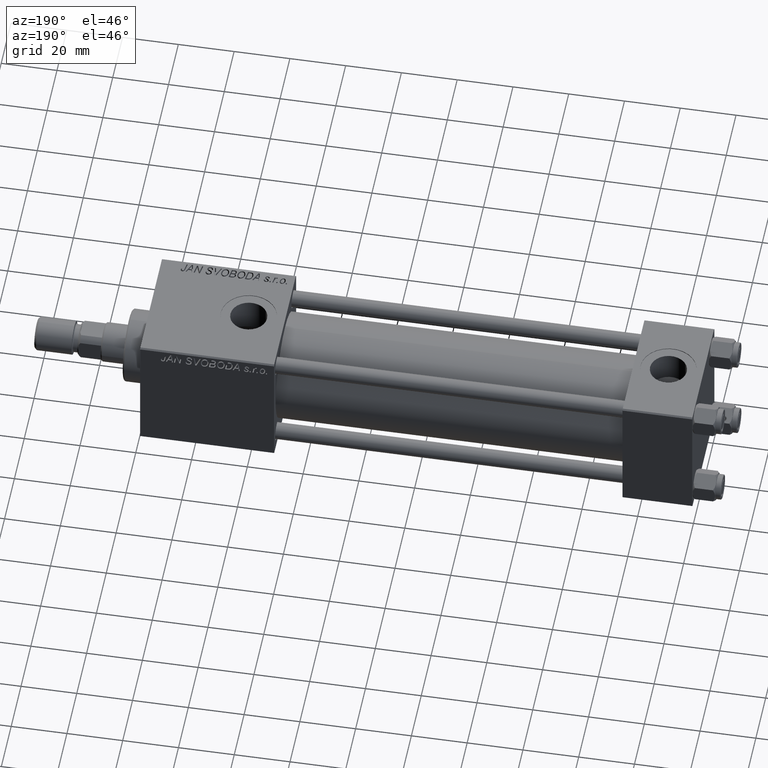
[diagram: clean part render]
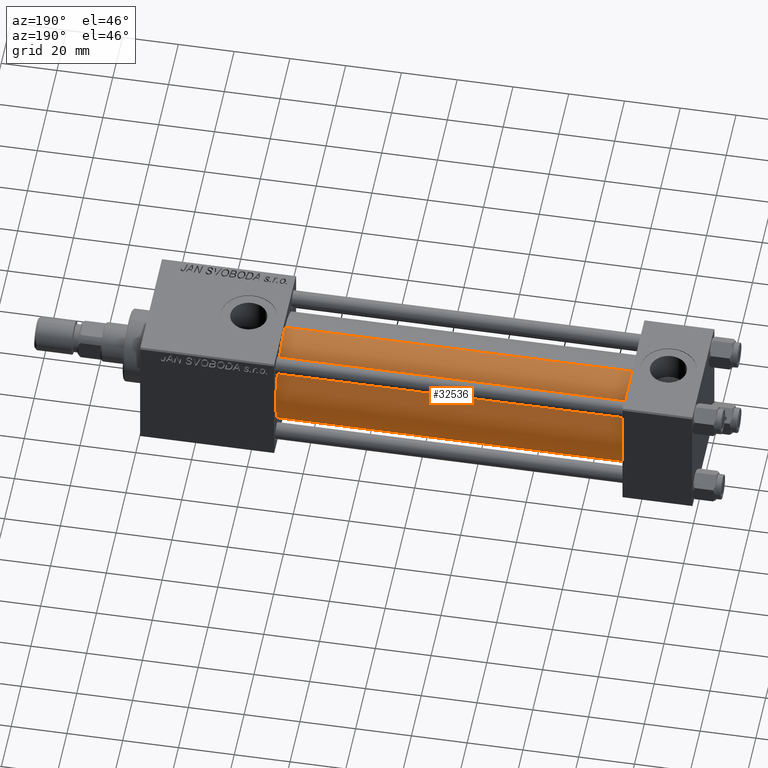
[diagram: same view with one face highlighted and labeled with its STEP entity id]
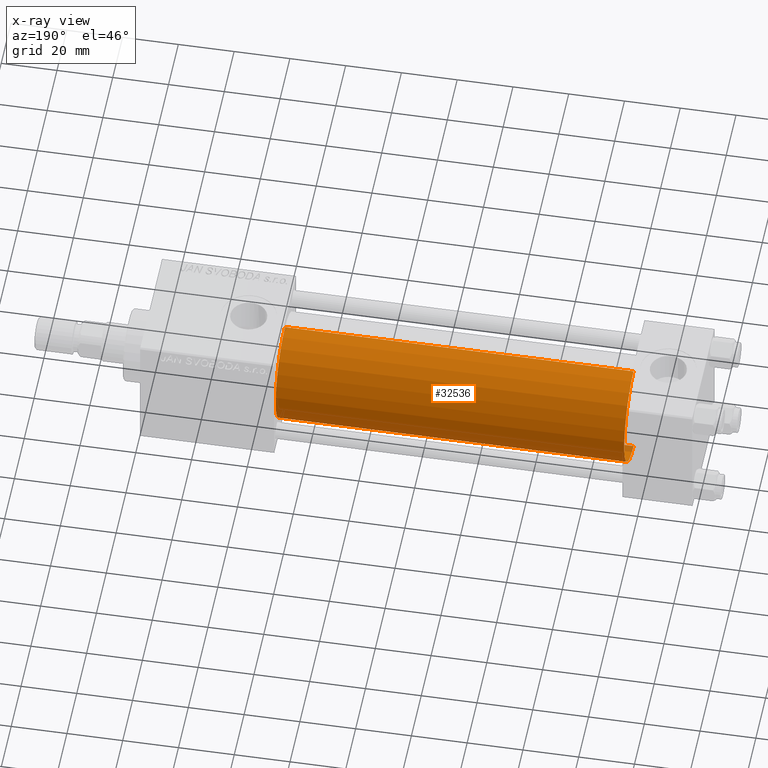
[diagram: x-ray of the same camera — body ghosted, the highlighted face saturated]
A machine part, auxiliary view. The second image highlights one B-rep face of the part: STEP entity #32536.
The next image is the same camera in x-ray: the body ghosted, the highlighted face saturated — about 0% of this face is hidden behind the body in this view.
In plain terms, the highlighted cylindrical surface (partial cylindrical patch) has radius 19 mm, axis along (-1, -0, -0).
Its self-contained STEP definition (entity closure, byte-faithful):
#902 = VECTOR ( 'NONE', #4315, 1000.000000000000000 ) ;
#2256 = AXIS2_PLACEMENT_3D ( 'NONE', #3547, #48278, #11013 ) ;
#2581 = ORIENTED_EDGE ( 'NONE', *, *, #38394, .F. ) ;
#2650 = VERTEX_POINT ( 'NONE', #8740 ) ;
#2849 = CARTESIAN_POINT ( 'NONE',  ( 24.99999999999999289, -2.752562955852396712E-16, -19.00000000000000000 ) ) ;
#3202 = DIRECTION ( 'NONE',  ( 0.000000000000000000, 0.000000000000000000, -1.000000000000000000 ) ) ;
#3547 = CARTESIAN_POINT ( 'NONE',  ( 24.99999999999999289, -2.602085213965210642E-15, 0.000000000000000000 ) ) ;
#4315 = DIRECTION ( 'NONE',  ( -1.000000000000000000, -0.000000000000000000, -0.000000000000000000 ) ) ;
#6484 = DIRECTION ( 'NONE',  ( -1.000000000000000000, -0.000000000000000000, -0.000000000000000000 ) ) ;
#7187 = DIRECTION ( 'NONE',  ( 1.000000000000000000, 0.000000000000000000, 0.000000000000000000 ) ) ;
#7579 = CARTESIAN_POINT ( 'NONE',  ( 150.0000000000000000, -2.752562955852396712E-16, -19.00000000000000000 ) ) ;
#7880 = EDGE_CURVE ( 'NONE', #25886, #43372, #17103, .T. ) ;
#8003 = AXIS2_PLACEMENT_3D ( 'NONE', #47679, #7187, #3202 ) ;
#8740 = CARTESIAN_POINT ( 'NONE',  ( 24.99999999999999289, -2.602085213965210642E-15, 19.00000000000000000 ) ) ;
#11013 = DIRECTION ( 'NONE',  ( 0.000000000000000000, 0.000000000000000000, 1.000000000000000000 ) ) ;
#11756 = ORIENTED_EDGE ( 'NONE', *, *, #33599, .F. ) ;
#16077 = CARTESIAN_POINT ( 'NONE',  ( 150.0000000000000000, -2.602085213965210642E-15, 19.00000000000000000 ) ) ;
#17103 = LINE ( 'NONE', #44779, #902 ) ;
#18097 = EDGE_CURVE ( 'NONE', #43372, #2650, #24421, .T. ) ;
#21963 = CYLINDRICAL_SURFACE ( 'NONE', #45236, 19.00000000000000000 ) ;
#24421 = CIRCLE ( 'NONE', #2256, 19.00000000000000000 ) ;
#25714 = DIRECTION ( 'NONE',  ( 0.000000000000000000, 0.000000000000000000, 1.000000000000000000 ) ) ;
#25886 = VERTEX_POINT ( 'NONE', #7579 ) ;
#28928 = CARTESIAN_POINT ( 'NONE',  ( 150.0000000000000000, -2.602085213965210642E-15, 19.00000000000000000 ) ) ;
#32536 = ADVANCED_FACE ( 'NONE', ( #33951 ), #21963, .T. ) ;
#33599 = EDGE_CURVE ( 'NONE', #36056, #2650, #44624, .T. ) ;
#33951 = FACE_OUTER_BOUND ( 'NONE', #41900, .T. ) ;
#36056 = VERTEX_POINT ( 'NONE', #16077 ) ;
#38184 = CARTESIAN_POINT ( 'NONE',  ( 150.0000000000000000, -2.602085213965210642E-15, 0.000000000000000000 ) ) ;
#38394 = EDGE_CURVE ( 'NONE', #25886, #36056, #52192, .T. ) ;
#41760 = ORIENTED_EDGE ( 'NONE', *, *, #18097, .T. ) ;
#41900 = EDGE_LOOP ( 'NONE', ( #2581, #45443, #41760, #11756 ) ) ;
#43372 = VERTEX_POINT ( 'NONE', #2849 ) ;
#44624 = LINE ( 'NONE', #28928, #45267 ) ;
#44779 = CARTESIAN_POINT ( 'NONE',  ( 150.0000000000000000, -2.752562955852396712E-16, -19.00000000000000000 ) ) ;
#45236 = AXIS2_PLACEMENT_3D ( 'NONE', #38184, #6484, #25714 ) ;
#45267 = VECTOR ( 'NONE', #49160, 1000.000000000000000 ) ;
#45443 = ORIENTED_EDGE ( 'NONE', *, *, #7880, .T. ) ;
#47679 = CARTESIAN_POINT ( 'NONE',  ( 150.0000000000000000, -2.602085213965210642E-15, 0.000000000000000000 ) ) ;
#48278 = DIRECTION ( 'NONE',  ( 1.000000000000000000, -0.000000000000000000, 0.000000000000000000 ) ) ;
#49160 = DIRECTION ( 'NONE',  ( -1.000000000000000000, -0.000000000000000000, -0.000000000000000000 ) ) ;
#52192 = CIRCLE ( 'NONE', #8003, 19.00000000000000000 ) ;